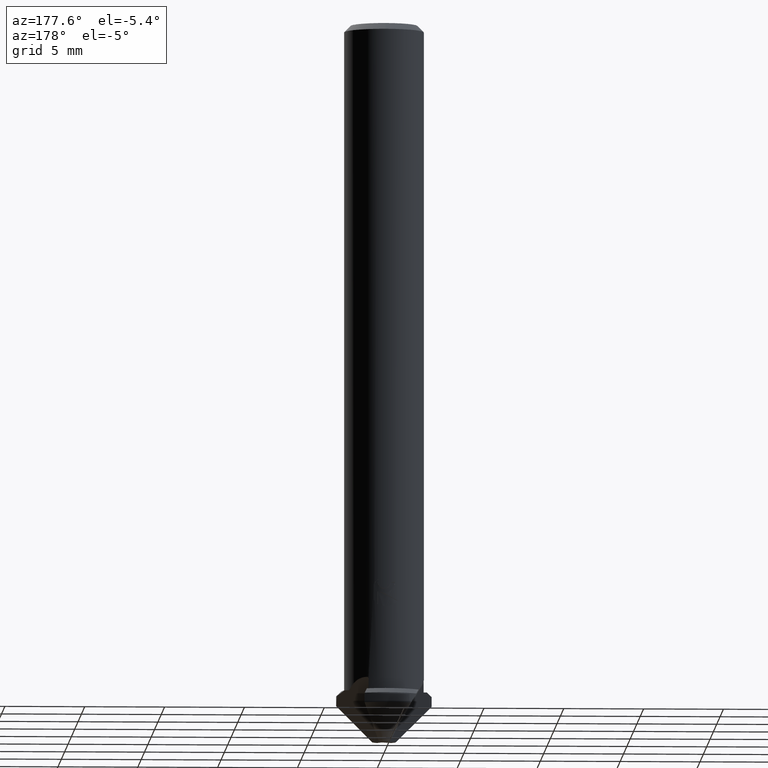
[diagram: clean part render]
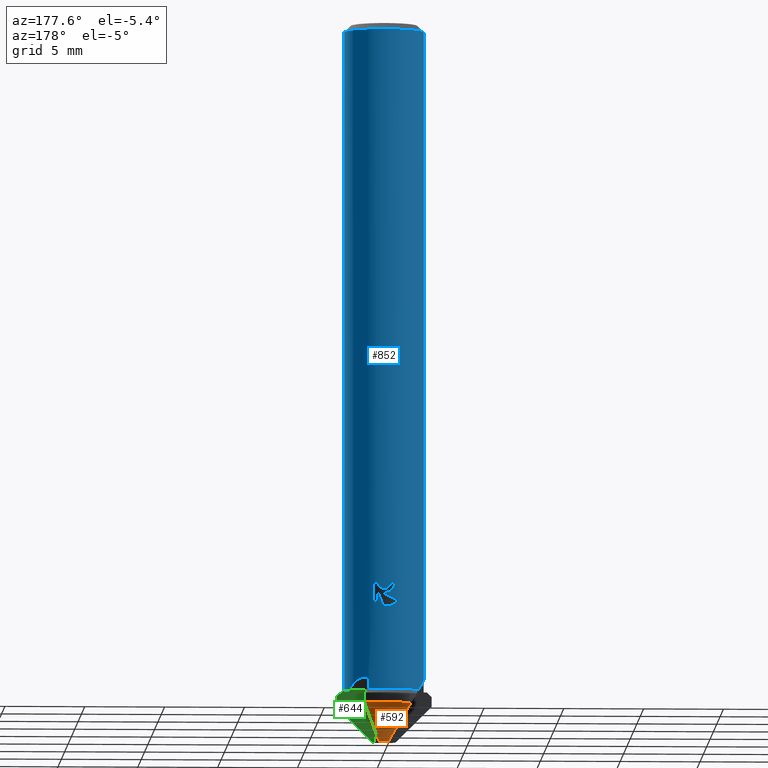
[diagram: same view with three faces highlighted in distinct colors, each labeled with its STEP entity id]
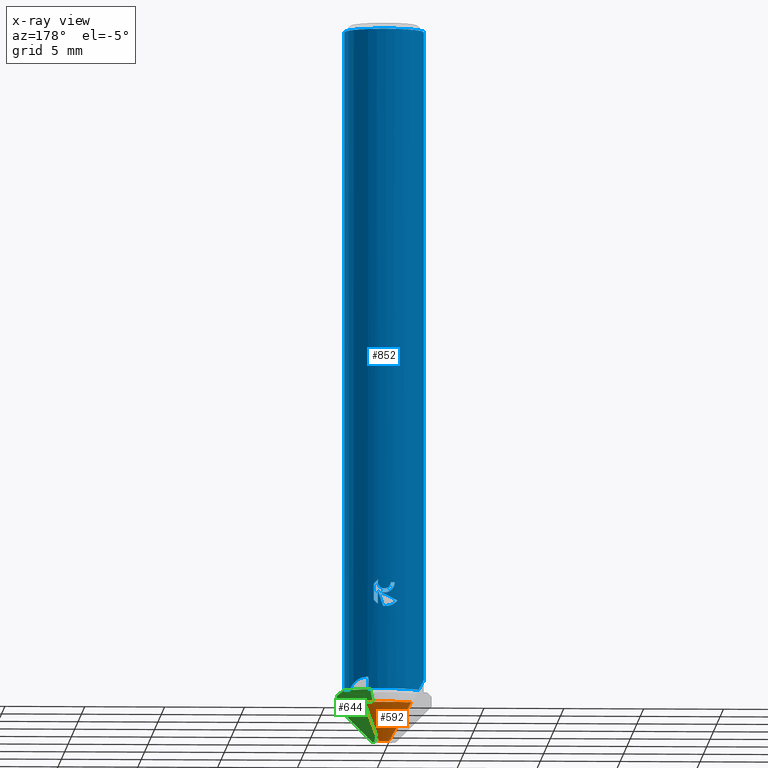
[diagram: x-ray of the same camera — body ghosted, the three highlighted faces saturated]
A machine part, auxiliary view with three faces highlighted in distinct colors.
The next image is the same camera in x-ray (body ghosted, the three faces saturated) — at least one of them is partly hidden behind the body in this view.
Their STEP definitions:

[orange] entity #592 — the highlighted conical surface has half-angle 45 deg.
#518=EDGE_CURVE('',#802,#924,#1385,.T.);
#564=VERTEX_POINT('',#1437);
#572=EDGE_CURVE('',#924,#898,#1446,.T.);
#592=ADVANCED_FACE('',(#1469),#1470,.T.);
#802=VERTEX_POINT('',#1695);
#898=VERTEX_POINT('',#1806);
#924=VERTEX_POINT('',#1833);
#1160=EDGE_CURVE('',#802,#564,#2087,.T.);
#1276=EDGE_CURVE('',#898,#564,#2214,.T.);
#1385=(B_SPLINE_CURVE(2,(#2386,#2387,#2388),.UNSPECIFIED.,.F.,.F.)B_SPLINE_CURVE_WITH_KNOTS((3,3),(0.0,3.19557728387752),.UNSPECIFIED.)RATIONAL_B_SPLINE_CURVE((1.0,1.20879147207731,1.0))BOUNDED_CURVE()REPRESENTATION_ITEM('')GEOMETRIC_REPRESENTATION_ITEM()CURVE());
#1437=CARTESIAN_POINT('',(0.351795301828989,0.662374565945169,-45.0));
#1446=CIRCLE('',#2503,3.0);
#1469=FACE_OUTER_BOUND('',#2529,.T.);
#1470=CONICAL_SURFACE('',#2530,1.875,0.785398163397448);
#1695=CARTESIAN_POINT('',(-0.266053891210158,0.701224163140385,-45.0));
#1806=CARTESIAN_POINT('',(1.3382441990993,2.6849771812023,-42.75));
#1833=CARTESIAN_POINT('',(-1.59124968913594,2.54321143966143,-42.75));
#2087=CIRCLE('',#3957,0.75);
#2214=(B_SPLINE_CURVE(2,(#4180,#4181,#4182),.UNSPECIFIED.,.F.,.F.)B_SPLINE_CURVE_WITH_KNOTS((3,3),(0.0,3.18221664788696),.UNSPECIFIED.)RATIONAL_B_SPLINE_CURVE((1.0,1.24976587973853,1.0))BOUNDED_CURVE()REPRESENTATION_ITEM('')GEOMETRIC_REPRESENTATION_ITEM()CURVE());
#2386=CARTESIAN_POINT('',(-0.266053891210158,0.701224163140385,-45.0));
#2387=CARTESIAN_POINT('',(-0.551858646575252,1.11144353671853,-44.5150730610233));
#2388=CARTESIAN_POINT('',(-1.59124968913594,2.54321143966143,-42.75));
#2503=AXIS2_PLACEMENT_3D('',#4371,#4372,#4373);
#2529=EDGE_LOOP('',(#4410,#4411,#4412,#4413));
#2530=AXIS2_PLACEMENT_3D('',#4414,#4415,#4416);
#3957=AXIS2_PLACEMENT_3D('',#5085,#5086,#5087);
#4180=CARTESIAN_POINT('',(1.3382441990993,2.6849771812023,-42.75));
#4181=CARTESIAN_POINT('',(0.549233797145799,1.06718405014599,-44.5498754114121));
#4182=CARTESIAN_POINT('',(0.351795301828989,0.662374565945169,-45.0));
#4371=CARTESIAN_POINT('',(0.0,0.0,-42.75));
#4372=DIRECTION('',(0.0,0.0,-1.0));
#4373=DIRECTION('',(-1.0,0.0,0.0));
#4410=ORIENTED_EDGE('',*,*,#518,.T.);
#4411=ORIENTED_EDGE('',*,*,#572,.T.);
#4412=ORIENTED_EDGE('',*,*,#1276,.T.);
#4413=ORIENTED_EDGE('',*,*,#1160,.F.);
#4414=CARTESIAN_POINT('',(0.0,0.0,-43.875));
#4415=DIRECTION('',(-0.0,-0.0,1.0));
#4416=DIRECTION('',(-1.0,0.0,0.0));
#5085=CARTESIAN_POINT('',(0.0,0.0,-45.0));
#5086=DIRECTION('',(0.0,0.0,-1.0));
#5087=DIRECTION('',(-1.0,0.0,0.0));

[blue] entity #852 — the highlighted cylindrical surface (partial cylindrical patch) has radius 2.5 mm, axis along (-0, -0, 1).
#462=VERTEX_POINT('',#1327);
#490=VERTEX_POINT('',#1356);
#544=EDGE_CURVE('',#982,#1230,#1415,.T.);
#566=EDGE_CURVE('',#686,#982,#1439,.T.);
#582=VERTEX_POINT('',#1458);
#598=VERTEX_POINT('',#1476);
#614=EDGE_CURVE('',#1164,#794,#1493,.T.);
#616=VERTEX_POINT('',#1495);
#658=VERTEX_POINT('',#1542);
#660=EDGE_CURVE('',#854,#658,#1544,.T.);
#670=VERTEX_POINT('',#1554);
#686=VERTEX_POINT('',#1571);
#736=VERTEX_POINT('',#1624);
#740=VERTEX_POINT('',#1628);
#786=EDGE_CURVE('',#1072,#616,#1677,.T.);
#794=VERTEX_POINT('',#1686);
#800=EDGE_CURVE('',#1230,#1282,#1693,.T.);
#810=EDGE_CURVE('',#736,#670,#1706,.T.);
#814=EDGE_CURVE('',#658,#976,#1710,.T.);
#834=EDGE_CURVE('',#740,#1152,#1735,.T.);
#848=EDGE_CURVE('',#1282,#1164,#1750,.T.);
#852=ADVANCED_FACE('',(#1754,#1755),#1756,.T.);
#854=VERTEX_POINT('',#1758);
#872=EDGE_CURVE('',#1014,#1270,#1777,.T.);
#886=VERTEX_POINT('',#1793);
#918=EDGE_CURVE('',#490,#968,#1827,.T.);
#940=EDGE_CURVE('',#886,#1248,#1849,.T.);
#968=VERTEX_POINT('',#1879);
#972=EDGE_CURVE('',#968,#686,#1883,.T.);
#976=VERTEX_POINT('',#1888);
#982=VERTEX_POINT('',#1894);
#1014=VERTEX_POINT('',#1931);
#1022=EDGE_CURVE('',#886,#462,#1939,.T.);
#1024=EDGE_CURVE('',#1248,#1152,#1941,.T.);
#1028=EDGE_CURVE('',#976,#1072,#1945,.T.);
#1036=EDGE_CURVE('',#794,#854,#1953,.T.);
#1052=EDGE_CURVE('',#582,#490,#1969,.T.);
#1072=VERTEX_POINT('',#1990);
#1152=VERTEX_POINT('',#2079);
#1154=EDGE_CURVE('',#462,#598,#2081,.T.);
#1164=VERTEX_POINT('',#2092);
#1184=EDGE_CURVE('',#616,#582,#2115,.T.);
#1230=VERTEX_POINT('',#2165);
#1236=EDGE_CURVE('',#598,#1270,#2173,.T.);
#1248=VERTEX_POINT('',#2185);
#1250=EDGE_CURVE('',#736,#740,#2187,.T.);
#1266=EDGE_CURVE('',#1014,#670,#2204,.T.);
#1270=VERTEX_POINT('',#2208);
#1282=VERTEX_POINT('',#2220);
#1327=CARTESIAN_POINT('',(1.11945875477982,2.23535502691336,-41.1139234402125));
#1356=CARTESIAN_POINT('',(0.444128737768459,2.46023366050629,-35.0000001538183));
#1415=CIRCLE('',#2431,2.5);
#1439=B_SPLINE_CURVE_WITH_KNOTS('',3,(#2469,#2470,#2471,#2472,#2473,#2474,#2475,#2476,#2477,#2478,#2479,#2480,#2481,#2482,#2483,#2484,#2485,#2486,#2487,#2488,#2489,#2490,#2491,#2492,#2493,#2494,#2495),.UNSPECIFIED.,.F.,.F.,(4,2,3,2,2,2,2,2,2,2,2,2,4),(-0.301503278454075,-0.150751639227038,0.0,0.150751639227038,0.301503278454075,0.452645086780626,0.603786895107177,0.754271619615112,0.904756344123047,1.05543488838393,1.20611343264482,1.35679197690571,1.5074705211666),.UNSPECIFIED.);
#1458=CARTESIAN_POINT('',(0.742894482122776,2.38707096426385,-35.2861380208401));
#1476=CARTESIAN_POINT('',(1.05679381825682,2.26565373031586,-41.271066367513));
#1493=ELLIPSE('',#2564,2.78732108010715,2.5);
#1495=CARTESIAN_POINT('',(0.742894482122777,2.38707096426385,-36.2723142805034));
#1542=CARTESIAN_POINT('',(0.161168404231131,2.49479954013897,-36.6665738361236));
#1544=B_SPLINE_CURVE_WITH_KNOTS('',3,(#2649,#2650,#2651,#2652,#2653,#2654,#2655,#2656,#2657,#2658),.UNSPECIFIED.,.F.,.F.,(4,2,2,2,4),(3.09837550339328,3.44278385228406,3.78723916731241,4.13169448234076,4.47551218078378),.UNSPECIFIED.);
#1554=CARTESIAN_POINT('',(-2.5,-2.476560133496E-016,-41.1100794319298));
#1571=CARTESIAN_POINT('',(-0.270210525197664,2.48535435543353,-35.3573798608818));
#1624=CARTESIAN_POINT('',(-2.5,-3.06151588455594E-016,-0.399999999999999));
#1628=CARTESIAN_POINT('',(0.0,2.5,-0.399999999999999));
#1677=B_SPLINE_CURVE_WITH_KNOTS('',3,(#2981,#2982,#2983,#2984,#2985,#2986),.UNSPECIFIED.,.F.,.F.,(4,2,4),(4.47551170548333,4.81932937236525,5.16363155748401),.UNSPECIFIED.);
#1686=CARTESIAN_POINT('',(-0.742807086176167,2.38709816151881,-36.3178224420131));
#1693=B_SPLINE_CURVE_WITH_KNOTS('',3,(#3005,#3006,#3007,#3008,#3009,#3010,#3011,#3012,#3013,#3014,#3015,#3016,#3017,#3018),.UNSPECIFIED.,.F.,.F.,(4,2,2,2,2,2,4),(1.7426107460822,1.9913632153039,2.24011568452559,2.48886815374729,2.73698656585005,2.98510497795281,3.23493590836227),.UNSPECIFIED.);
#1706=LINE('',#3048,#3049);
#1710=ELLIPSE('',#3054,7.61998643342443,2.5);
#1735=CIRCLE('',#3090,2.5);
#1750=B_SPLINE_CURVE_WITH_KNOTS('',3,(#3110,#3111,#3112,#3113,#3114,#3115,#3116,#3117,#3118,#3119,#3120,#3121,#3122,#3123),.UNSPECIFIED.,.F.,.F.,(4,2,2,2,2,2,4),(1.7426107460822,1.9913632153039,2.24011568452559,2.48886815374729,2.73698656585005,2.98510497795281,3.23493590836227),.UNSPECIFIED.);
#1754=FACE_OUTER_BOUND('',#3127,.T.);
#1755=FACE_BOUND('',#3128,.T.);
#1756=CYLINDRICAL_SURFACE('',#3129,2.5);
#1758=CARTESIAN_POINT('',(-9.27653320671539E-016,2.5,-36.683902981203));
#1777=CIRCLE('',#3158,2.5);
#1793=CARTESIAN_POINT('',(2.23039761168194,1.12930354369563,-41.85));
#1827=B_SPLINE_CURVE_WITH_KNOTS('',3,(#3231,#3232,#3233,#3234,#3235,#3236,#3237,#3238,#3239,#3240,#3241,#3242,#3243,#3244,#3245,#3246,#3247,#3248,#3249,#3250,#3251,#3252,#3253,#3254,#3255,#3256,#3257),.UNSPECIFIED.,.F.,.F.,(4,2,3,2,2,2,2,2,2,2,2,2,4),(-0.301503278454075,-0.150751639227038,0.0,0.150751639227038,0.301503278454075,0.452645086780626,0.603786895107177,0.754271619615112,0.904756344123047,1.05543488838393,1.20611343264482,1.35679197690571,1.5074705211666),.UNSPECIFIED.);
#1849=CIRCLE('',#3363,2.5);
#1879=CARTESIAN_POINT('',(-5.97332878342138E-015,2.5,-35.5684826743449));
#1883=B_SPLINE_CURVE_WITH_KNOTS('',3,(#3425,#3426,#3427,#3428,#3429,#3430,#3431,#3432,#3433,#3434,#3435,#3436,#3437,#3438,#3439,#3440,#3441,#3442,#3443,#3444,#3445,#3446,#3447,#3448,#3449,#3450,#3451),.UNSPECIFIED.,.F.,.F.,(4,2,3,2,2,2,2,2,2,2,2,2,4),(-0.301503278454075,-0.150751639227038,0.0,0.150751639227038,0.301503278454075,0.452645086780626,0.603786895107177,0.754271619615112,0.904756344123047,1.05543488838393,1.20611343264482,1.35679197690571,1.5074705211666),.UNSPECIFIED.);
#1888=CARTESIAN_POINT('',(0.485311546392265,2.45244219155893,-35.7332739790272));
#1894=CARTESIAN_POINT('',(-0.312407772973711,2.48040347189436,-35.1761789996285));
#1931=CARTESIAN_POINT('',(-2.09320436326517,1.36692922040889,-41.85));
#1939=ELLIPSE('',#3602,5.00306602403646,2.5);
#1941=LINE('',#3605,#3606);
#1945=LINE('',#3621,#3622);
#1953=B_SPLINE_CURVE_WITH_KNOTS('',3,(#3643,#3644,#3645,#3646,#3647,#3648,#3649,#3650,#3651,#3652),.UNSPECIFIED.,.F.,.F.,(4,2,2,2,4),(3.09837550339328,3.44278385228406,3.78723916731241,4.13169448234076,4.47551218078378),.UNSPECIFIED.);
#1969=B_SPLINE_CURVE_WITH_KNOTS('',3,(#3674,#3675,#3676,#3677,#3678,#3679),.UNSPECIFIED.,.F.,.F.,(4,2,4),(0.344302197119824,0.688604394239647,1.03242207268003),.UNSPECIFIED.);
#1990=CARTESIAN_POINT('',(0.485311546392265,2.45244219155893,-36.5326306581503));
#2079=CARTESIAN_POINT('',(2.5,3.06151588455594E-016,-0.399999999999999));
#2081=B_SPLINE_CURVE_WITH_KNOTS('',3,(#3936,#3937,#3938,#3939,#3940,#3941,#3942,#3943,#3944,#3945,#3946,#3947,#3948,#3949),.UNSPECIFIED.,.F.,.F.,(4,2,2,2,2,2,4),(0.184157600930737,0.192742132728682,0.206598262560849,0.234310522225183,0.293125424812681,0.351940327400179,0.362202442003439),.UNSPECIFIED.);
#2092=CARTESIAN_POINT('',(0.318403909431595,2.47964089143139,-35.7946277612708));
#2115=LINE('',#4000,#4001);
#2165=CARTESIAN_POINT('',(-0.575040781099412,2.43296693361677,-35.1761789996285));
#2173=ELLIPSE('',#4113,71.6342708696101,2.5);
#2185=CARTESIAN_POINT('',(2.5,3.06151588455594E-016,-41.85));
#2187=CIRCLE('',#4141,2.5);
#2204=ELLIPSE('',#4167,5.00306602403646,2.5);
#2208=CARTESIAN_POINT('',(1.07510205301384,2.25702360989101,-41.85));
#2220=CARTESIAN_POINT('',(2.94648960573711E-016,2.5,-35.8333778656602));
#2431=AXIS2_PLACEMENT_3D('',#4333,#4334,#4335);
#2469=CARTESIAN_POINT('',(0.369548811999049,2.47253587952735,-34.8964786191432));
#2470=CARTESIAN_POINT('',(0.404861108035139,2.4672580523552,-34.9318382529565));
#2471=CARTESIAN_POINT('',(0.435531120364256,2.46185739730343,-34.976630107659));
#2472=CARTESIAN_POINT('',(0.476270835819975,2.45430138702185,-35.0749257442502));
#2473=CARTESIAN_POINT('',(0.48633387941076,2.45223966156191,-35.128439460941));
#2474=CARTESIAN_POINT('',(0.48633387941076,2.45223966156191,-35.17869000735));
#2475=CARTESIAN_POINT('',(0.48633387941076,2.45223966156191,-35.228940553759));
#2476=CARTESIAN_POINT('',(0.476270835819975,2.45430138702185,-35.2824542704499));
#2477=CARTESIAN_POINT('',(0.435531120364256,2.46185739730343,-35.3807499070411));
#2478=CARTESIAN_POINT('',(0.404861108035139,2.4672580523552,-35.4255417617436));
#2479=CARTESIAN_POINT('',(0.334145122152473,2.47782736655147,-35.4963525456982));
#2480=CARTESIAN_POINT('',(0.289305325260424,2.48369608192703,-35.527107641238));
#2481=CARTESIAN_POINT('',(0.190892767318426,2.49319147877631,-35.5679670750413));
#2482=CARTESIAN_POINT('',(0.137309222045896,2.49673474415629,-35.5780647804754));
#2483=CARTESIAN_POINT('',(0.0368278859231848,2.50023196731992,-35.5780647804754));
#2484=CARTESIAN_POINT('',(-0.0166543724400533,2.50042853478556,-35.5680454936543));
#2485=CARTESIAN_POINT('',(-0.115011831478481,2.49783756564824,-35.5273175845606));
#2486=CARTESIAN_POINT('',(-0.159890289496504,2.49513488917208,-35.4966114745342));
#2487=CARTESIAN_POINT('',(-0.230796640598874,2.48957811407573,-35.425765774382));
#2488=CARTESIAN_POINT('',(-0.261552287839775,2.48636524822382,-35.3808734168709));
#2489=CARTESIAN_POINT('',(-0.302363265727945,2.48173290383039,-35.2824513169887));
#2490=CARTESIAN_POINT('',(-0.312415666839968,2.48040247764611,-35.2289161887703));
#2491=CARTESIAN_POINT('',(-0.312415666839968,2.48040247764611,-35.1284638259297));
#2492=CARTESIAN_POINT('',(-0.302363265727943,2.48173290383039,-35.0749286977114));
#2493=CARTESIAN_POINT('',(-0.261552287839771,2.48636524822382,-34.9765065978292));
#2494=CARTESIAN_POINT('',(-0.230796640598876,2.48957811407573,-34.931614240318));
#2495=CARTESIAN_POINT('',(-0.195320648434777,2.49235828971178,-34.8961685931456));
#2564=AXIS2_PLACEMENT_3D('',#4442,#4443,#4444);
#2649=CARTESIAN_POINT('',(-0.851106475177585,2.35066326127559,-36.1269024909624));
#2650=CARTESIAN_POINT('',(-0.804803660480817,2.36742814224895,-36.2381528911139));
#2651=CARTESIAN_POINT('',(-0.735407248289793,2.39081527433525,-36.3391384186257));
#2652=CARTESIAN_POINT('',(-0.575994604090084,2.43414329353883,-36.4986257124624));
#2653=CARTESIAN_POINT('',(-0.474957233154073,2.45704682104698,-36.5681296877785));
#2654=CARTESIAN_POINT('',(-0.252286582505711,2.48978210591063,-36.6608653102068));
#2655=CARTESIAN_POINT('',(-0.130572918570901,2.49922667773841,-36.6840401886507));
#2656=CARTESIAN_POINT('',(0.0988468623720696,2.50067267150162,-36.6840401886507));
#2657=CARTESIAN_POINT('',(0.220461194614961,2.49279132706837,-36.6609421952063));
#2658=CARTESIAN_POINT('',(0.331769901216233,2.47788795804955,-36.6146383873412));
#2981=CARTESIAN_POINT('',(0.331769749005721,2.47788797842935,-36.6146381461851));
#2982=CARTESIAN_POINT('',(0.443078446249926,2.46298461762336,-36.5683343424503));
#2983=CARTESIAN_POINT('',(0.544155571787289,2.44144957033601,-36.4988775392922));
#2984=CARTESIAN_POINT('',(0.703754029929931,2.40031887098883,-36.3393510488815));
#2985=CARTESIAN_POINT('',(0.773235235584424,2.37792196272201,-36.2382656179319));
#2986=CARTESIAN_POINT('',(0.81957224427909,2.36184278401576,-36.1269515835893));
#3005=CARTESIAN_POINT('',(-0.524781511497588,2.44430038358429,-34.9291582621933));
#3006=CARTESIAN_POINT('',(-0.558417432003994,2.4370788892112,-35.010136782394));
#3007=CARTESIAN_POINT('',(-0.575060566651156,2.4329622571431,-35.0983613221402));
#3008=CARTESIAN_POINT('',(-0.575060566651156,2.4329622571431,-35.2641963016213));
#3009=CARTESIAN_POINT('',(-0.558417432003994,2.4370788892112,-35.3524208413676));
#3010=CARTESIAN_POINT('',(-0.491145590991195,2.4515218779574,-35.5143778817689));
#3011=CARTESIAN_POINT('',(-0.440532304120222,2.4615878504116,-35.5881399013442));
#3012=CARTESIAN_POINT('',(-0.324026998725568,2.47961130516434,-35.7044707001471));
#3013=CARTESIAN_POINT('',(-0.250316671775757,2.48875757251386,-35.7549419914583));
#3014=CARTESIAN_POINT('',(-0.0885452067588335,2.49974647452028,-35.8219834671733));
#3015=CARTESIAN_POINT('',(-0.000462669095395662,2.50136764412902,-35.838538129503));
#3016=CARTESIAN_POINT('',(0.165430701833303,2.49591020226218,-35.838538129503));
#3017=CARTESIAN_POINT('',(0.253778343542199,2.48842727297033,-35.821778246351));
#3018=CARTESIAN_POINT('',(0.334735715041448,2.47748905165607,-35.7880859413538));
#3048=CARTESIAN_POINT('',(-2.5,-3.06151588455594E-016,-40.925));
#3049=VECTOR('',#4665,1.0);
#3054=AXIS2_PLACEMENT_3D('',#4666,#4667,#4668);
#3090=AXIS2_PLACEMENT_3D('',#4714,#4715,#4716);
#3110=CARTESIAN_POINT('',(-0.524781511497588,2.44430038358429,-34.9291582621933));
#3111=CARTESIAN_POINT('',(-0.558417432003994,2.4370788892112,-35.010136782394));
#3112=CARTESIAN_POINT('',(-0.575060566651156,2.4329622571431,-35.0983613221402));
#3113=CARTESIAN_POINT('',(-0.575060566651156,2.4329622571431,-35.2641963016213));
#3114=CARTESIAN_POINT('',(-0.558417432003994,2.4370788892112,-35.3524208413676));
#3115=CARTESIAN_POINT('',(-0.491145590991195,2.4515218779574,-35.5143778817689));
#3116=CARTESIAN_POINT('',(-0.440532304120222,2.4615878504116,-35.5881399013442));
#3117=CARTESIAN_POINT('',(-0.324026998725568,2.47961130516434,-35.7044707001471));
#3118=CARTESIAN_POINT('',(-0.250316671775757,2.48875757251386,-35.7549419914583));
#3119=CARTESIAN_POINT('',(-0.0885452067588335,2.49974647452028,-35.8219834671733));
#3120=CARTESIAN_POINT('',(-0.000462669095395662,2.50136764412902,-35.838538129503));
#3121=CARTESIAN_POINT('',(0.165430701833303,2.49591020226218,-35.838538129503));
#3122=CARTESIAN_POINT('',(0.253778343542199,2.48842727297033,-35.821778246351));
#3123=CARTESIAN_POINT('',(0.334735715041448,2.47748905165607,-35.7880859413538));
#3127=EDGE_LOOP('',(#4733,#4734,#4735,#4736,#4737,#4738,#4739,#4740,#4741,#4742));
#3128=EDGE_LOOP('',(#4743,#4744,#4745,#4746,#4747,#4748,#4749,#4750,#4751,#4752,#4753,#4754,#4755,#4756));
#3129=AXIS2_PLACEMENT_3D('',#4757,#4758,#4759);
#3158=AXIS2_PLACEMENT_3D('',#4779,#4780,#4781);
#3231=CARTESIAN_POINT('',(0.369548811999049,2.47253587952735,-34.8964786191432));
#3232=CARTESIAN_POINT('',(0.404861108035139,2.4672580523552,-34.9318382529565));
#3233=CARTESIAN_POINT('',(0.435531120364256,2.46185739730343,-34.976630107659));
#3234=CARTESIAN_POINT('',(0.476270835819975,2.45430138702185,-35.0749257442502));
#3235=CARTESIAN_POINT('',(0.48633387941076,2.45223966156191,-35.128439460941));
#3236=CARTESIAN_POINT('',(0.48633387941076,2.45223966156191,-35.17869000735));
#3237=CARTESIAN_POINT('',(0.48633387941076,2.45223966156191,-35.228940553759));
#3238=CARTESIAN_POINT('',(0.476270835819975,2.45430138702185,-35.2824542704499));
#3239=CARTESIAN_POINT('',(0.435531120364256,2.46185739730343,-35.3807499070411));
#3240=CARTESIAN_POINT('',(0.404861108035139,2.4672580523552,-35.4255417617436));
#3241=CARTESIAN_POINT('',(0.334145122152473,2.47782736655147,-35.4963525456982));
#3242=CARTESIAN_POINT('',(0.289305325260424,2.48369608192703,-35.527107641238));
#3243=CARTESIAN_POINT('',(0.190892767318426,2.49319147877631,-35.5679670750413));
#3244=CARTESIAN_POINT('',(0.137309222045896,2.49673474415629,-35.5780647804754));
#3245=CARTESIAN_POINT('',(0.0368278859231848,2.50023196731992,-35.5780647804754));
#3246=CARTESIAN_POINT('',(-0.0166543724400533,2.50042853478556,-35.5680454936543));
#3247=CARTESIAN_POINT('',(-0.115011831478481,2.49783756564824,-35.5273175845606));
#3248=CARTESIAN_POINT('',(-0.159890289496504,2.49513488917208,-35.4966114745342));
#3249=CARTESIAN_POINT('',(-0.230796640598874,2.48957811407573,-35.425765774382));
#3250=CARTESIAN_POINT('',(-0.261552287839775,2.48636524822382,-35.3808734168709));
#3251=CARTESIAN_POINT('',(-0.302363265727945,2.48173290383039,-35.2824513169887));
#3252=CARTESIAN_POINT('',(-0.312415666839968,2.48040247764611,-35.2289161887703));
#3253=CARTESIAN_POINT('',(-0.312415666839968,2.48040247764611,-35.1284638259297));
#3254=CARTESIAN_POINT('',(-0.302363265727943,2.48173290383039,-35.0749286977114));
#3255=CARTESIAN_POINT('',(-0.261552287839771,2.48636524822382,-34.9765065978292));
#3256=CARTESIAN_POINT('',(-0.230796640598876,2.48957811407573,-34.931614240318));
#3257=CARTESIAN_POINT('',(-0.195320648434777,2.49235828971178,-34.8961685931456));
#3363=AXIS2_PLACEMENT_3D('',#4837,#4838,#4839);
#3425=CARTESIAN_POINT('',(0.369548811999049,2.47253587952735,-34.8964786191432));
#3426=CARTESIAN_POINT('',(0.404861108035139,2.4672580523552,-34.9318382529565));
#3427=CARTESIAN_POINT('',(0.435531120364256,2.46185739730343,-34.976630107659));
#3428=CARTESIAN_POINT('',(0.476270835819975,2.45430138702185,-35.0749257442502));
#3429=CARTESIAN_POINT('',(0.48633387941076,2.45223966156191,-35.128439460941));
#3430=CARTESIAN_POINT('',(0.48633387941076,2.45223966156191,-35.17869000735));
#3431=CARTESIAN_POINT('',(0.48633387941076,2.45223966156191,-35.228940553759));
#3432=CARTESIAN_POINT('',(0.476270835819975,2.45430138702185,-35.2824542704499));
#3433=CARTESIAN_POINT('',(0.435531120364256,2.46185739730343,-35.3807499070411));
#3434=CARTESIAN_POINT('',(0.404861108035139,2.4672580523552,-35.4255417617436));
#3435=CARTESIAN_POINT('',(0.334145122152473,2.47782736655147,-35.4963525456982));
#3436=CARTESIAN_POINT('',(0.289305325260424,2.48369608192703,-35.527107641238));
#3437=CARTESIAN_POINT('',(0.190892767318426,2.49319147877631,-35.5679670750413));
#3438=CARTESIAN_POINT('',(0.137309222045896,2.49673474415629,-35.5780647804754));
#3439=CARTESIAN_POINT('',(0.0368278859231848,2.50023196731992,-35.5780647804754));
#3440=CARTESIAN_POINT('',(-0.0166543724400533,2.50042853478556,-35.5680454936543));
#3441=CARTESIAN_POINT('',(-0.115011831478481,2.49783756564824,-35.5273175845606));
#3442=CARTESIAN_POINT('',(-0.159890289496504,2.49513488917208,-35.4966114745342));
#3443=CARTESIAN_POINT('',(-0.230796640598874,2.48957811407573,-35.425765774382));
#3444=CARTESIAN_POINT('',(-0.261552287839775,2.48636524822382,-35.3808734168709));
#3445=CARTESIAN_POINT('',(-0.302363265727945,2.48173290383039,-35.2824513169887));
#3446=CARTESIAN_POINT('',(-0.312415666839968,2.48040247764611,-35.2289161887703));
#3447=CARTESIAN_POINT('',(-0.312415666839968,2.48040247764611,-35.1284638259297));
#3448=CARTESIAN_POINT('',(-0.302363265727943,2.48173290383039,-35.0749286977114));
#3449=CARTESIAN_POINT('',(-0.261552287839771,2.48636524822382,-34.9765065978292));
#3450=CARTESIAN_POINT('',(-0.230796640598876,2.48957811407573,-34.931614240318));
#3451=CARTESIAN_POINT('',(-0.195320648434777,2.49235828971178,-34.8961685931456));
#3602=AXIS2_PLACEMENT_3D('',#4932,#4933,#4934);
#3605=CARTESIAN_POINT('',(2.5,3.06151588455594E-016,-40.925));
#3606=VECTOR('',#4935,1.0);
#3621=CARTESIAN_POINT('',(0.485311546392265,2.45244219155893,-36.1329523185887));
#3622=VECTOR('',#4936,1.0);
#3643=CARTESIAN_POINT('',(-0.851106475177585,2.35066326127559,-36.1269024909624));
#3644=CARTESIAN_POINT('',(-0.804803660480817,2.36742814224895,-36.2381528911139));
#3645=CARTESIAN_POINT('',(-0.735407248289793,2.39081527433525,-36.3391384186257));
#3646=CARTESIAN_POINT('',(-0.575994604090084,2.43414329353883,-36.4986257124624));
#3647=CARTESIAN_POINT('',(-0.474957233154073,2.45704682104698,-36.5681296877785));
#3648=CARTESIAN_POINT('',(-0.252286582505711,2.48978210591063,-36.6608653102068));
#3649=CARTESIAN_POINT('',(-0.130572918570901,2.49922667773841,-36.6840401886507));
#3650=CARTESIAN_POINT('',(0.0988468623720696,2.50067267150162,-36.6840401886507));
#3651=CARTESIAN_POINT('',(0.220461194614961,2.49279132706837,-36.6609421952063));
#3652=CARTESIAN_POINT('',(0.331769901216233,2.47788795804955,-36.6146383873412));
#3674=CARTESIAN_POINT('',(0.819572248707612,2.36184278247904,-35.4315007254576));
#3675=CARTESIAN_POINT('',(0.773235238386737,2.37792196184694,-35.3201866872608));
#3676=CARTESIAN_POINT('',(0.703754030298735,2.40031887098004,-35.2191012528167));
#3677=CARTESIAN_POINT('',(0.544155566616611,2.44144957158242,-35.05957475698));
#3678=CARTESIAN_POINT('',(0.443078437625546,2.46298461934583,-34.990117951483));
#3679=CARTESIAN_POINT('',(0.33176973658968,2.47788798009176,-34.9438141461958));
#3936=CARTESIAN_POINT('',(1.11945875477982,2.23535502691336,-41.1139234402125));
#3937=CARTESIAN_POINT('',(1.11693606443682,2.23661838228915,-41.1141415635389));
#3938=CARTESIAN_POINT('',(1.11444545191005,2.23786028227054,-41.1146868102748));
#3939=CARTESIAN_POINT('',(1.1080962719998,2.24101358464992,-41.1168822783324));
#3940=CARTESIAN_POINT('',(1.10433753422275,2.24286731841524,-41.1190137653241));
#3941=CARTESIAN_POINT('',(1.0938374500817,2.24801699691509,-41.1270811254951));
#3942=CARTESIAN_POINT('',(1.08786706242935,2.2509046387973,-41.1347420055017));
#3943=CARTESIAN_POINT('',(1.0733978304308,2.25786097566766,-41.1587030992715));
#3944=CARTESIAN_POINT('',(1.0668940735108,2.26091992752144,-41.1784935888278));
#3945=CARTESIAN_POINT('',(1.05842558371533,2.26489672305205,-41.2196343927208));
#3946=CARTESIAN_POINT('',(1.05662864158571,2.26573076815864,-41.2410271209171));
#3947=CARTESIAN_POINT('',(1.05662864158571,2.26573076815864,-41.264052793314));
#3948=CARTESIAN_POINT('',(1.05668194620784,2.26570591202757,-41.2675362337877));
#3949=CARTESIAN_POINT('',(1.05679381825682,2.26565373031586,-41.271066367513));
#4000=CARTESIAN_POINT('',(0.742894482122777,2.38707096426385,-35.7792261506717));
#4001=VECTOR('',#5128,1.0);
#4113=AXIS2_PLACEMENT_3D('',#5198,#5199,#5200);
#4141=AXIS2_PLACEMENT_3D('',#5205,#5206,#5207);
#4167=AXIS2_PLACEMENT_3D('',#5225,#5226,#5227);
#4333=CARTESIAN_POINT('',(0.0,0.0,-35.1761789996285));
#4334=DIRECTION('',(0.0,0.0,1.0));
#4335=DIRECTION('',(-1.0,0.0,0.0));
#4442=CARTESIAN_POINT('',(0.0,0.0,-35.9516061872687));
#4443=DIRECTION('',(-0.442195774284071,0.0,0.896918556617774));
#4444=DIRECTION('',(-0.896918556617774,0.0,-0.442195774284071));
#4665=DIRECTION('',(0.0,0.0,-1.0));
#4666=CARTESIAN_POINT('',(0.0,0.0,-37.1306232916651));
#4667=DIRECTION('',(0.944648353914092,0.0,-0.328084573619969));
#4668=DIRECTION('',(-0.328084573619969,0.0,-0.944648353914092));
#4714=CARTESIAN_POINT('',(0.0,0.0,-0.399999999999999));
#4715=DIRECTION('',(0.0,0.0,-1.0));
#4716=DIRECTION('',(0.0,1.0,0.0));
#4733=ORIENTED_EDGE('',*,*,#810,.F.);
#4734=ORIENTED_EDGE('',*,*,#1250,.T.);
#4735=ORIENTED_EDGE('',*,*,#834,.T.);
#4736=ORIENTED_EDGE('',*,*,#1024,.F.);
#4737=ORIENTED_EDGE('',*,*,#940,.F.);
#4738=ORIENTED_EDGE('',*,*,#1022,.T.);
#4739=ORIENTED_EDGE('',*,*,#1154,.T.);
#4740=ORIENTED_EDGE('',*,*,#1236,.T.);
#4741=ORIENTED_EDGE('',*,*,#872,.F.);
#4742=ORIENTED_EDGE('',*,*,#1266,.T.);
#4743=ORIENTED_EDGE('',*,*,#614,.T.);
#4744=ORIENTED_EDGE('',*,*,#1036,.T.);
#4745=ORIENTED_EDGE('',*,*,#660,.T.);
#4746=ORIENTED_EDGE('',*,*,#814,.T.);
#4747=ORIENTED_EDGE('',*,*,#1028,.T.);
#4748=ORIENTED_EDGE('',*,*,#786,.T.);
#4749=ORIENTED_EDGE('',*,*,#1184,.T.);
#4750=ORIENTED_EDGE('',*,*,#1052,.T.);
#4751=ORIENTED_EDGE('',*,*,#918,.T.);
#4752=ORIENTED_EDGE('',*,*,#972,.T.);
#4753=ORIENTED_EDGE('',*,*,#566,.T.);
#4754=ORIENTED_EDGE('',*,*,#544,.T.);
#4755=ORIENTED_EDGE('',*,*,#800,.T.);
#4756=ORIENTED_EDGE('',*,*,#848,.T.);
#4757=CARTESIAN_POINT('',(0.0,0.0,-40.925));
#4758=DIRECTION('',(-0.0,-0.0,1.0));
#4759=DIRECTION('',(-1.0,0.0,0.0));
#4779=CARTESIAN_POINT('',(0.0,0.0,-41.85));
#4780=DIRECTION('',(0.0,0.0,-1.0));
#4781=DIRECTION('',(-1.0,0.0,0.0));
#4837=CARTESIAN_POINT('',(0.0,0.0,-41.85));
#4838=DIRECTION('',(0.0,0.0,-1.0));
#4839=DIRECTION('',(-1.0,0.0,0.0));
#4932=CARTESIAN_POINT('',(0.0,0.0,-45.4432782267687));
#4933=DIRECTION('',(-0.422027715316389,-0.75643831746136,0.499693585491204));
#4934=DIRECTION('',(-0.243458781909612,-0.436373121184318,-0.866202240021893));
#4935=DIRECTION('',(-0.0,-0.0,1.0));
#4936=DIRECTION('',(0.0,0.0,-1.0));
#5128=DIRECTION('',(-0.0,-0.0,1.0));
#5198=CARTESIAN_POINT('',(0.0,0.0,-45.01));
#5199=DIRECTION('',(-0.882409725041803,0.469185573394539,-0.0348994967025007));
#5200=DIRECTION('',(-0.030814426605461,0.016384321257364,0.999390827019096));
#5205=CARTESIAN_POINT('',(0.0,0.0,-0.399999999999999));
#5206=DIRECTION('',(0.0,0.0,-1.0));
#5207=DIRECTION('',(0.0,1.0,0.0));
#5225=CARTESIAN_POINT('',(0.0,0.0,-45.4432782267687));
#5226=DIRECTION('',(0.866108656975691,0.0127324361655803,0.499693585491204));
#5227=DIRECTION('',(-0.49963959942913,-0.00734507068401933,0.866202240021893));

[green] entity #644 — the highlighted planar face has unit normal (-0.422, -0.7564, 0.4997).
#474=VERTEX_POINT('',#1340);
#558=EDGE_CURVE('',#744,#1010,#1431,.T.);
#594=EDGE_CURVE('',#1010,#1118,#1472,.T.);
#610=VERTEX_POINT('',#1489);
#644=ADVANCED_FACE('',(#1526),#1527,.F.);
#744=VERTEX_POINT('',#1632);
#748=EDGE_CURVE('',#474,#1144,#1636,.T.);
#758=VERTEX_POINT('',#1646);
#816=EDGE_CURVE('',#758,#1042,#1712,.T.);
#894=VERTEX_POINT('',#1802);
#902=EDGE_CURVE('',#1142,#1090,#1810,.T.);
#920=EDGE_CURVE('',#1042,#610,#1829,.T.);
#1010=VERTEX_POINT('',#1926);
#1020=EDGE_CURVE('',#610,#744,#1937,.T.);
#1026=EDGE_CURVE('',#894,#758,#1943,.T.);
#1032=EDGE_CURVE('',#1142,#1118,#1949,.T.);
#1042=VERTEX_POINT('',#1959);
#1090=VERTEX_POINT('',#2010);
#1118=VERTEX_POINT('',#2041);
#1142=VERTEX_POINT('',#2069);
#1144=VERTEX_POINT('',#2071);
#1274=EDGE_CURVE('',#1090,#474,#2212,.T.);
#1284=EDGE_CURVE('',#1144,#894,#2222,.T.);
#1340=CARTESIAN_POINT('',(0.598992471401178,-0.0347565706695547,-44.99));
#1431=(B_SPLINE_CURVE(2,(#2452,#2453,#2454),.UNSPECIFIED.,.F.,.F.)B_SPLINE_CURVE_WITH_KNOTS((3,3),(0.0,0.0251933624838409),.UNSPECIFIED.)RATIONAL_B_SPLINE_CURVE((1.0,1.00000275108883,1.0))BOUNDED_CURVE()REPRESENTATION_ITEM('')GEOMETRIC_REPRESENTATION_ITEM()CURVE());
#1472=LINE('',#2533,#2534);
#1489=CARTESIAN_POINT('',(2.95319392226246,0.527868977599616,-42.15));
#1526=FACE_OUTER_BOUND('',#2627,.T.);
#1527=PLANE('',#2628);
#1632=CARTESIAN_POINT('',(2.53752647109425,0.951346103421865,-41.86));
#1636=(B_SPLINE_CURVE(2,(#2824,#2825,#2826),.UNSPECIFIED.,.F.,.F.)B_SPLINE_CURVE_WITH_KNOTS((3,3),(0.0,2.05390842824059),.UNSPECIFIED.)RATIONAL_B_SPLINE_CURVE((1.0,3.72611473754672,1.0))BOUNDED_CURVE()REPRESENTATION_ITEM('')GEOMETRIC_REPRESENTATION_ITEM()CURVE());
#1646=CARTESIAN_POINT('',(1.97341383376221,2.5848823789605E-016,-43.7765861662378));
#1712=(B_SPLINE_CURVE(2,(#3058,#3059,#3060),.UNSPECIFIED.,.F.,.F.)B_SPLINE_CURVE_WITH_KNOTS((3,3),(0.0,3.19557728387752),.UNSPECIFIED.)RATIONAL_B_SPLINE_CURVE((1.0,1.20879147207735,1.0))BOUNDED_CURVE()REPRESENTATION_ITEM('')GEOMETRIC_REPRESENTATION_ITEM()CURVE());
#1802=CARTESIAN_POINT('',(0.740304884632136,-0.120202653006491,-45.0));
#1810=ELLIPSE('',#3211,1.20073584576875,0.6);
#1829=ELLIPSE('',#3260,6.00367922884375,3.0);
#1926=CARTESIAN_POINT('',(2.52078212903208,0.967293883963141,-41.85));
#1937=(B_SPLINE_CURVE(2,(#3591,#3592,#3593),.UNSPECIFIED.,.F.,.F.)B_SPLINE_CURVE_WITH_KNOTS((3,3),(0.0,0.66067462479535),.UNSPECIFIED.)RATIONAL_B_SPLINE_CURVE((1.0,1.00169448352188,1.0))BOUNDED_CURVE()REPRESENTATION_ITEM('')GEOMETRIC_REPRESENTATION_ITEM()CURVE());
#1943=(B_SPLINE_CURVE(2,(#3610,#3611,#3612),.UNSPECIFIED.,.F.,.F.)B_SPLINE_CURVE_WITH_KNOTS((3,3),(0.0,3.19557728387752),.UNSPECIFIED.)RATIONAL_B_SPLINE_CURVE((1.0,1.20879147207735,1.0))BOUNDED_CURVE()REPRESENTATION_ITEM('')GEOMETRIC_REPRESENTATION_ITEM()CURVE());
#1949=LINE('',#3637,#3638);
#1959=CARTESIAN_POINT('',(2.99811055850996,0.106456934725098,-42.75));
#2010=CARTESIAN_POINT('',(0.6,-3.61267347978871E-016,-44.9365344210804));
#2041=CARTESIAN_POINT('',(0.942519537422883,1.84782907147388,-41.85));
#2069=CARTESIAN_POINT('',(0.328168773412019,0.502299966312213,-44.4057318701355));
#2071=CARTESIAN_POINT('',(0.735658108451723,-0.117610150366504,-45.0));
#2212=ELLIPSE('',#4176,1.20073584576875,0.6);
#2222=LINE('',#4200,#4201);
#2452=CARTESIAN_POINT('',(2.53752647109425,0.951346103421863,-41.86));
#2453=CARTESIAN_POINT('',(2.52915497072433,0.959340857254535,-41.854967850227));
#2454=CARTESIAN_POINT('',(2.52078212903208,0.967293883963142,-41.85));
#2533=CARTESIAN_POINT('',(5.61620406386152,-0.759686118161134,-41.85));
#2534=VECTOR('',#4417,1.0);
#2627=EDGE_LOOP('',(#4477,#4478,#4479,#4480,#4481,#4482,#4483,#4484,#4485,#4486,#4487));
#2628=AXIS2_PLACEMENT_3D('',#4488,#4489,#4490);
#2824=CARTESIAN_POINT('',(-0.776574119798067,0.712027131828415,-45.0212820071702));
#2825=CARTESIAN_POINT('',(0.137764308606409,0.246927388952013,-44.9531264574469));
#2826=CARTESIAN_POINT('',(1.01379051303047,-0.286842806584627,-45.0212820071702));
#3058=CARTESIAN_POINT('',(0.740304884632137,-0.120202653006492,-45.0));
#3059=CARTESIAN_POINT('',(1.23846766095794,-0.0777981611269906,-44.5150730610232));
#3060=CARTESIAN_POINT('',(2.99811055850997,0.106456934725101,-42.75));
#3211=AXIS2_PLACEMENT_3D('',#4811,#4812,#4813);
#3260=AXIS2_PLACEMENT_3D('',#4828,#4829,#4830);
#3591=CARTESIAN_POINT('',(2.95319392226246,0.527868977599616,-42.15));
#3592=CARTESIAN_POINT('',(2.74504143328393,0.753170033901088,-41.9847382576289));
#3593=CARTESIAN_POINT('',(2.53752647109425,0.951346103421863,-41.86));
#3610=CARTESIAN_POINT('',(0.740304884632137,-0.120202653006492,-45.0));
#3611=CARTESIAN_POINT('',(1.23846766095794,-0.0777981611269906,-44.5150730610232));
#3612=CARTESIAN_POINT('',(2.99811055850997,0.106456934725101,-42.75));
#3637=CARTESIAN_POINT('',(0.157537284685265,0.128588972872554,-45.1155679431642));
#3638=VECTOR('',#4937,1.0);
#4176=AXIS2_PLACEMENT_3D('',#5228,#5229,#5230);
#4200=CARTESIAN_POINT('',(5.07498305773305,-2.53858136783018,-45.0));
#4201=VECTOR('',#5235,1.0);
#4417=DIRECTION('',(-0.873281414560002,0.487216144010113,0.0));
#4477=ORIENTED_EDGE('',*,*,#902,.F.);
#4478=ORIENTED_EDGE('',*,*,#1032,.T.);
#4479=ORIENTED_EDGE('',*,*,#594,.F.);
#4480=ORIENTED_EDGE('',*,*,#558,.F.);
#4481=ORIENTED_EDGE('',*,*,#1020,.F.);
#4482=ORIENTED_EDGE('',*,*,#920,.F.);
#4483=ORIENTED_EDGE('',*,*,#816,.F.);
#4484=ORIENTED_EDGE('',*,*,#1026,.F.);
#4485=ORIENTED_EDGE('',*,*,#1284,.F.);
#4486=ORIENTED_EDGE('',*,*,#748,.F.);
#4487=ORIENTED_EDGE('',*,*,#1274,.F.);
#4488=CARTESIAN_POINT('',(10.6800132247352,-5.46692315380792,-44.6990793028196));
#4489=DIRECTION('',(-0.422027715316389,-0.75643831746136,0.499693585491204));
#4490=DIRECTION('',(0.88238762893187,-0.469225181055408,0.0349256606453176));
#4811=CARTESIAN_POINT('',(0.0,0.0,-45.4432782267687));
#4812=DIRECTION('',(0.422027715316389,0.75643831746136,-0.499693585491204));
#4813=DIRECTION('',(-0.243458781909612,-0.436373121184318,-0.866202240021893));
#4828=CARTESIAN_POINT('',(0.0,0.0,-45.4432782267687));
#4829=DIRECTION('',(-0.422027715316389,-0.756438317461361,0.499693585491204));
#4830=DIRECTION('',(-0.243458781909612,-0.436373121184318,-0.866202240021893));
#4937=DIRECTION('',(0.208049705149566,0.455663034862107,0.865497844507676));
#5228=CARTESIAN_POINT('',(0.0,0.0,-45.4432782267687));
#5229=DIRECTION('',(0.422027715316389,0.75643831746136,-0.499693585491204));
#5230=DIRECTION('',(-0.243458781909612,-0.436373121184318,-0.866202240021893));
#5235=DIRECTION('',(0.873281414560002,-0.487216144010113,0.0));